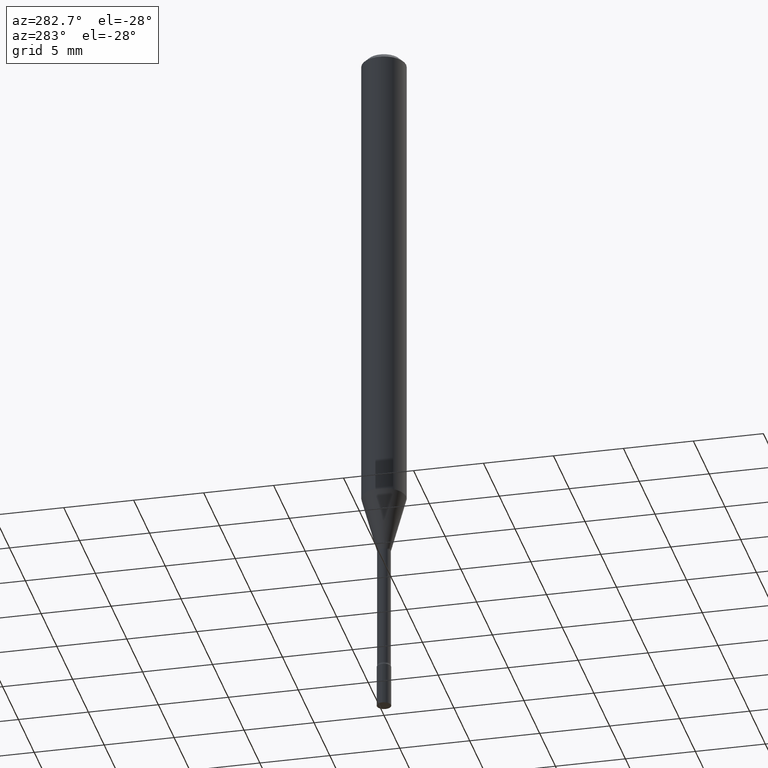
[diagram: clean part render]
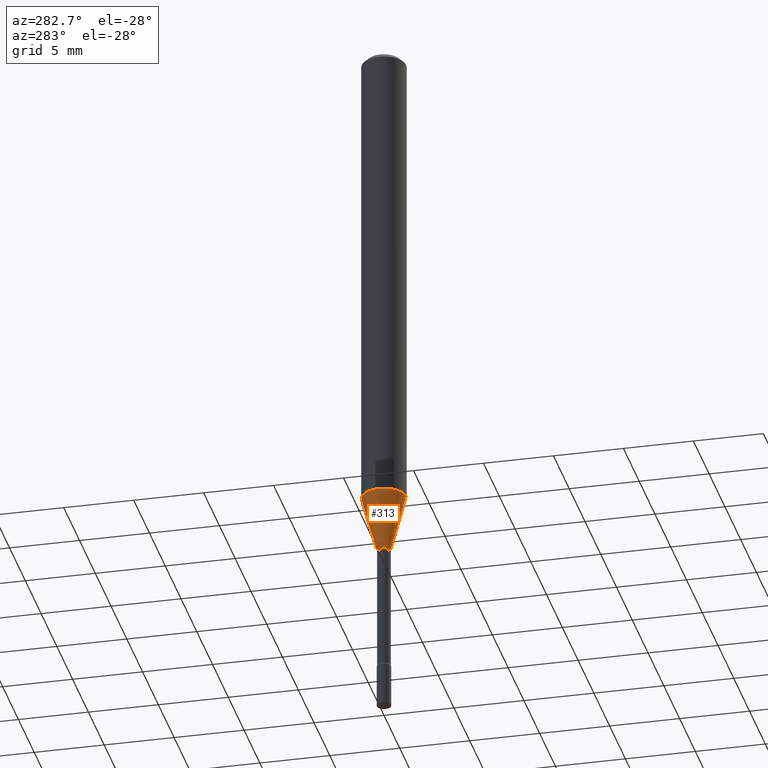
[diagram: same view with one face highlighted and labeled with its STEP entity id]
A machine part, auxiliary view. The second image highlights one B-rep face of the part: STEP entity #313.
In plain terms, the highlighted conical surface has half-angle 15 deg.
Its self-contained STEP definition (entity closure, byte-faithful):
#1 = EDGE_CURVE ( 'NONE', #261, #129, #315, .T. ) ;
#23 = VECTOR ( 'NONE', #168, 39.37007874015748143 ) ;
#32 = CARTESIAN_POINT ( 'NONE',  ( 1.372137078140354813E-16, 0.01931111260565867432, -1.518092501787273063 ) ) ;
#58 = VERTEX_POINT ( 'NONE', #461 ) ;
#64 = EDGE_LOOP ( 'NONE', ( #500, #420, #217, #301 ) ) ;
#74 = CONICAL_SURFACE ( 'NONE', #349, 0.01931111260566397564, 0.2617993877991498519 ) ;
#111 = CIRCLE ( 'NONE', #194, 0.06250000000000000000 ) ;
#113 = EDGE_CURVE ( 'NONE', #129, #58, #290, .T. ) ;
#129 = VERTEX_POINT ( 'NONE', #159 ) ;
#134 = DIRECTION ( 'NONE',  ( -6.982962677686265922E-15, -1.000000000000000000, 4.370956789862821150E-15 ) ) ;
#159 = CARTESIAN_POINT ( 'NONE',  ( -1.348487785899111910E-16, -0.01931111260566927695, -1.518092501787273063 ) ) ;
#168 = DIRECTION ( 'NONE',  ( -1.807323732225327378E-15, -0.2588190451025177974, 0.9659258262890690894 ) ) ;
#194 = AXIS2_PLACEMENT_3D ( 'NONE', #419, #216, #134 ) ;
#216 = DIRECTION ( 'NONE',  ( -2.445505106030929007E-29, 3.491429355397911828E-15, 1.000000000000000000 ) ) ;
#217 = ORIENTED_EDGE ( 'NONE', *, *, #113, .T. ) ;
#226 = LINE ( 'NONE', #32, #509 ) ;
#228 = CARTESIAN_POINT ( 'NONE',  ( 3.712502964548043038E-29, -5.300312724949541931E-15, -1.518092501787273063 ) ) ;
#229 = DIRECTION ( 'NONE',  ( 1.839019923739597160E-15, 0.2588190451025245142, 0.9659258262890670910 ) ) ;
#261 = VERTEX_POINT ( 'NONE', #287 ) ;
#265 = CARTESIAN_POINT ( 'NONE',  ( 4.440892098500955511E-16, 0.06249999999999524686, -1.356909379709240415 ) ) ;
#267 = CARTESIAN_POINT ( 'NONE',  ( 3.712502964548043038E-29, -5.300312724949541931E-15, -1.518092501787273063 ) ) ;
#287 = CARTESIAN_POINT ( 'NONE',  ( 2.906514588320657258E-16, 0.01931111260565867432, -1.518092501787273063 ) ) ;
#290 = LINE ( 'NONE', #458, #23 ) ;
#294 = AXIS2_PLACEMENT_3D ( 'NONE', #228, #354, #514 ) ;
#301 = ORIENTED_EDGE ( 'NONE', *, *, #394, .F. ) ;
#313 = ADVANCED_FACE ( 'NONE', ( #377 ), #74, .T. ) ;
#315 = CIRCLE ( 'NONE', #294, 0.01931111260566397564 ) ;
#347 = DIRECTION ( 'NONE',  ( -6.982962677686265922E-15, -1.000000000000000000, 0.000000000000000000 ) ) ;
#349 = AXIS2_PLACEMENT_3D ( 'NONE', #267, #384, #347 ) ;
#354 = DIRECTION ( 'NONE',  ( -2.445505106030929007E-29, 3.491429355397911828E-15, 1.000000000000000000 ) ) ;
#377 = FACE_OUTER_BOUND ( 'NONE', #64, .T. ) ;
#384 = DIRECTION ( 'NONE',  ( -2.445505106030929007E-29, 3.491429355397911828E-15, 1.000000000000000000 ) ) ;
#385 = VERTEX_POINT ( 'NONE', #265 ) ;
#394 = EDGE_CURVE ( 'NONE', #385, #58, #111, .T. ) ;
#419 = CARTESIAN_POINT ( 'NONE',  ( 3.318328816500207718E-29, -4.737553240931613222E-15, -1.356909379709240193 ) ) ;
#420 = ORIENTED_EDGE ( 'NONE', *, *, #1, .T. ) ;
#451 = EDGE_CURVE ( 'NONE', #261, #385, #226, .T. ) ;
#458 = CARTESIAN_POINT ( 'NONE',  ( -1.348487785899111910E-16, -0.01931111260566927695, -1.518092501787273063 ) ) ;
#461 = CARTESIAN_POINT ( 'NONE',  ( -4.364351673553586359E-16, -0.06250000000000476008, -1.356909379709239971 ) ) ;
#500 = ORIENTED_EDGE ( 'NONE', *, *, #451, .F. ) ;
#509 = VECTOR ( 'NONE', #229, 39.37007874015748854 ) ;
#514 = DIRECTION ( 'NONE',  ( -6.982962677686265922E-15, -1.000000000000000000, 0.000000000000000000 ) ) ;